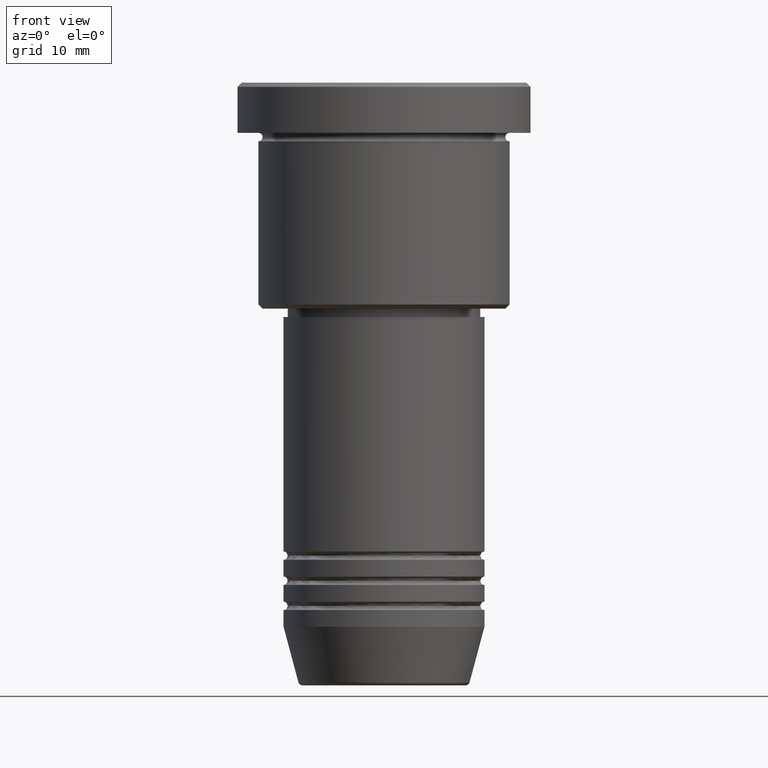
[diagram: clean part render]
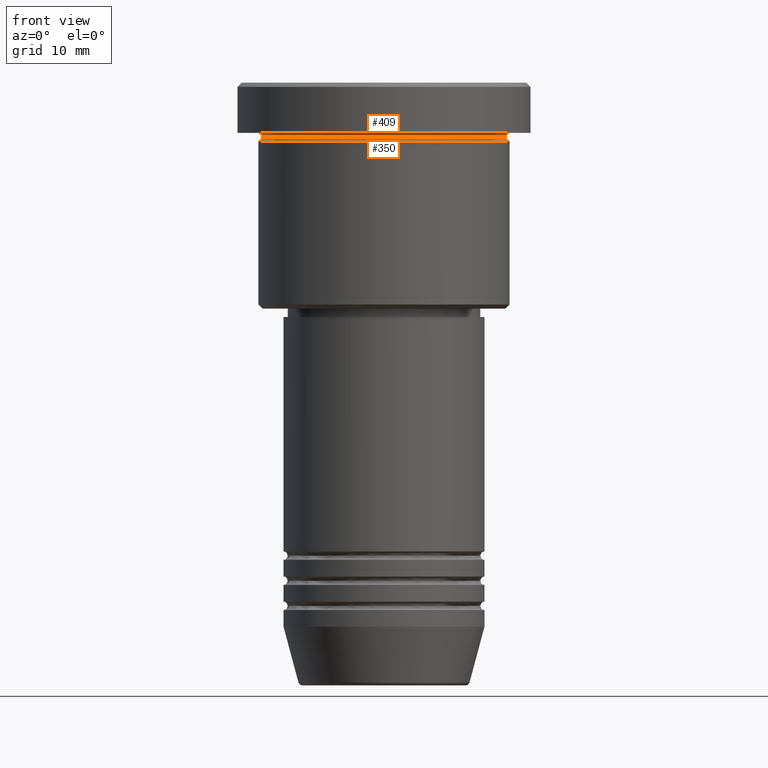
[diagram: same view with one multi-face feature highlighted, each face labeled with its STEP entity id]
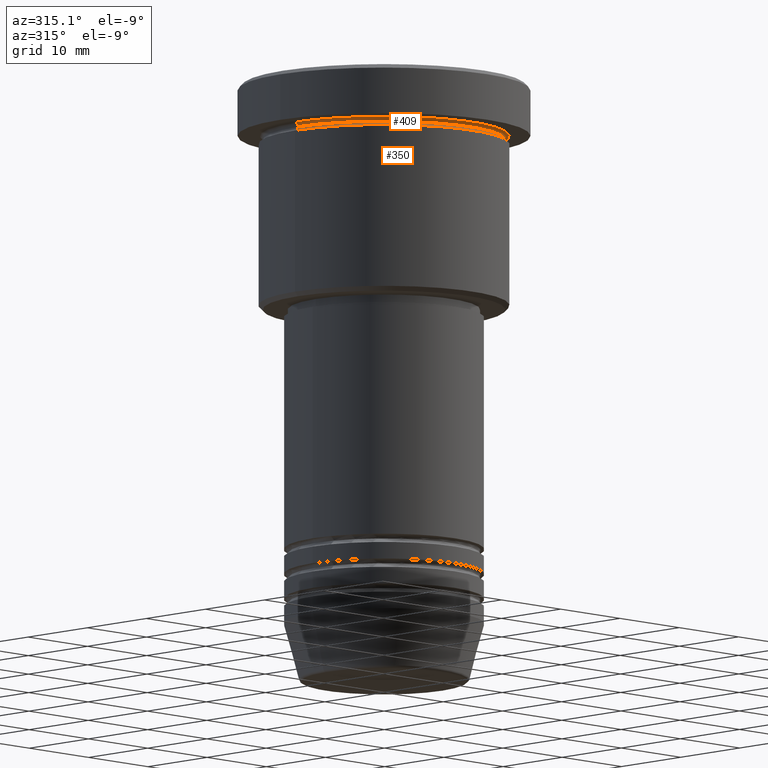
[diagram: same view with one multi-face feature highlighted, each face labeled with its STEP entity id]
A machine part, front view. The highlighted faces form ONE feature: a constant-radius fillet chain: 2 tangent blend faces with common blend radius 0.5 mm. The faces share edges in the B-rep.
A second angle (auxiliary view) of the same feature is appended — it is thin or edge-on in the first view.
Their STEP definitions:
[1] entity #409 (Torus):
#18 = VERTEX_POINT ( 'NONE', #595 ) ;
#41 = DIRECTION ( 'NONE',  ( 0.000000000000000000, 0.000000000000000000, -1.000000000000000000 ) ) ;
#70 = CIRCLE ( 'NONE', #567, 15.00000000000000000 ) ;
#85 = ORIENTED_EDGE ( 'NONE', *, *, #271, .F. ) ;
#93 = VERTEX_POINT ( 'NONE', #680 ) ;
#143 = TOROIDAL_SURFACE ( 'NONE', #187, 15.00000000000000000, 0.5000000000000000000 ) ;
#152 = EDGE_CURVE ( 'NONE', #18, #1121, #489, .T. ) ;
#187 = AXIS2_PLACEMENT_3D ( 'NONE', #422, #41, #776 ) ;
#234 = CARTESIAN_POINT ( 'NONE',  ( 0.000000000000000000, 0.000000000000000000, -5.999999999999995559 ) ) ;
#253 = EDGE_LOOP ( 'NONE', ( #942, #792, #403, #85 ) ) ;
#271 = EDGE_CURVE ( 'NONE', #18, #853, #389, .T. ) ;
#351 = CARTESIAN_POINT ( 'NONE',  ( 14.49999999999999822, 0.000000000000000000, -6.499999999999995559 ) ) ;
#353 = AXIS2_PLACEMENT_3D ( 'NONE', #793, #1092, #1163 ) ;
#389 = CIRCLE ( 'NONE', #353, 0.5000000000000004441 ) ;
#400 = DIRECTION ( 'NONE',  ( -1.224646799147353207E-16, 1.000000000000000000, 0.000000000000000000 ) ) ;
#403 = ORIENTED_EDGE ( 'NONE', *, *, #960, .F. ) ;
#409 = ADVANCED_FACE ( 'NONE', ( #598 ), #143, .F. ) ;
#422 = CARTESIAN_POINT ( 'NONE',  ( 0.000000000000000000, 0.000000000000000000, -6.499999999999995559 ) ) ;
#489 = CIRCLE ( 'NONE', #524, 14.49999999999999822 ) ;
#524 = AXIS2_PLACEMENT_3D ( 'NONE', #533, #1008, #893 ) ;
#533 = CARTESIAN_POINT ( 'NONE',  ( 0.000000000000000000, 0.000000000000000000, -6.499999999999995559 ) ) ;
#567 = AXIS2_PLACEMENT_3D ( 'NONE', #234, #1047, #592 ) ;
#592 = DIRECTION ( 'NONE',  ( -1.000000000000000000, 0.000000000000000000, 0.000000000000000000 ) ) ;
#595 = CARTESIAN_POINT ( 'NONE',  ( -14.49999999999999822, 1.806354028742345802E-15, -6.499999999999995559 ) ) ;
#598 = FACE_OUTER_BOUND ( 'NONE', #253, .T. ) ;
#620 = CIRCLE ( 'NONE', #750, 0.5000000000000004441 ) ;
#680 = CARTESIAN_POINT ( 'NONE',  ( 15.00000000000000000, 1.836970198721029589E-15, -5.999999999999994671 ) ) ;
#750 = AXIS2_PLACEMENT_3D ( 'NONE', #965, #400, #1148 ) ;
#776 = DIRECTION ( 'NONE',  ( -1.000000000000000000, 0.000000000000000000, 0.000000000000000000 ) ) ;
#792 = ORIENTED_EDGE ( 'NONE', *, *, #910, .T. ) ;
#793 = CARTESIAN_POINT ( 'NONE',  ( -15.00000000000000000, 0.000000000000000000, -6.499999999999995559 ) ) ;
#853 = VERTEX_POINT ( 'NONE', #940 ) ;
#893 = DIRECTION ( 'NONE',  ( 1.000000000000000000, 0.000000000000000000, 0.000000000000000000 ) ) ;
#910 = EDGE_CURVE ( 'NONE', #1121, #93, #620, .T. ) ;
#940 = CARTESIAN_POINT ( 'NONE',  ( -15.00000000000000000, 0.000000000000000000, -5.999999999999994671 ) ) ;
#942 = ORIENTED_EDGE ( 'NONE', *, *, #152, .T. ) ;
#960 = EDGE_CURVE ( 'NONE', #853, #93, #70, .T. ) ;
#965 = CARTESIAN_POINT ( 'NONE',  ( 15.00000000000000000, 1.836970198721029589E-15, -6.499999999999995559 ) ) ;
#1008 = DIRECTION ( 'NONE',  ( -0.000000000000000000, -0.000000000000000000, 1.000000000000000000 ) ) ;
#1047 = DIRECTION ( 'NONE',  ( -0.000000000000000000, -0.000000000000000000, 1.000000000000000000 ) ) ;
#1092 = DIRECTION ( 'NONE',  ( -0.000000000000000000, -1.000000000000000000, -0.000000000000000000 ) ) ;
#1121 = VERTEX_POINT ( 'NONE', #351 ) ;
#1148 = DIRECTION ( 'NONE',  ( -1.000000000000000000, -1.224646799147349509E-16, 0.000000000000000000 ) ) ;
#1163 = DIRECTION ( 'NONE',  ( 0.000000000000000000, 0.000000000000000000, -1.000000000000000000 ) ) ;
[2] entity #350 (Torus):
#18 = VERTEX_POINT ( 'NONE', #595 ) ;
#51 = AXIS2_PLACEMENT_3D ( 'NONE', #210, #484, #295 ) ;
#139 = ORIENTED_EDGE ( 'NONE', *, *, #326, .T. ) ;
#152 = EDGE_CURVE ( 'NONE', #18, #1121, #489, .T. ) ;
#193 = EDGE_LOOP ( 'NONE', ( #664, #909, #139, #809 ) ) ;
#208 = TOROIDAL_SURFACE ( 'NONE', #982, 15.00000000000000000, 0.5000000000000000000 ) ;
#210 = CARTESIAN_POINT ( 'NONE',  ( 15.00000000000000000, 0.000000000000000000, -6.499999999999995559 ) ) ;
#220 = FACE_OUTER_BOUND ( 'NONE', #193, .T. ) ;
#295 = DIRECTION ( 'NONE',  ( 0.000000000000000000, 0.000000000000000000, -1.000000000000000000 ) ) ;
#309 = DIRECTION ( 'NONE',  ( -0.000000000000000000, -0.000000000000000000, 1.000000000000000000 ) ) ;
#326 = EDGE_CURVE ( 'NONE', #1042, #559, #545, .T. ) ;
#350 = ADVANCED_FACE ( 'NONE', ( #220 ), #208, .F. ) ;
#351 = CARTESIAN_POINT ( 'NONE',  ( 14.49999999999999822, 0.000000000000000000, -6.499999999999995559 ) ) ;
#391 = CIRCLE ( 'NONE', #51, 0.5000000000000004441 ) ;
#439 = CARTESIAN_POINT ( 'NONE',  ( 15.00000000000000000, 0.000000000000000000, -6.999999999999995559 ) ) ;
#484 = DIRECTION ( 'NONE',  ( 0.000000000000000000, -1.000000000000000000, 0.000000000000000000 ) ) ;
#485 = DIRECTION ( 'NONE',  ( 1.000000000000000000, 0.000000000000000000, 0.000000000000000000 ) ) ;
#489 = CIRCLE ( 'NONE', #524, 14.49999999999999822 ) ;
#524 = AXIS2_PLACEMENT_3D ( 'NONE', #533, #1008, #893 ) ;
#528 = AXIS2_PLACEMENT_3D ( 'NONE', #1178, #709, #1085 ) ;
#533 = CARTESIAN_POINT ( 'NONE',  ( 0.000000000000000000, 0.000000000000000000, -6.499999999999995559 ) ) ;
#545 = CIRCLE ( 'NONE', #920, 15.00000000000000000 ) ;
#557 = CARTESIAN_POINT ( 'NONE',  ( 0.000000000000000000, 0.000000000000000000, -6.999999999999995559 ) ) ;
#559 = VERTEX_POINT ( 'NONE', #439 ) ;
#574 = DIRECTION ( 'NONE',  ( 1.000000000000000000, 0.000000000000000000, 0.000000000000000000 ) ) ;
#595 = CARTESIAN_POINT ( 'NONE',  ( -14.49999999999999822, 1.806354028742345802E-15, -6.499999999999995559 ) ) ;
#646 = EDGE_CURVE ( 'NONE', #18, #1042, #865, .T. ) ;
#664 = ORIENTED_EDGE ( 'NONE', *, *, #152, .F. ) ;
#709 = DIRECTION ( 'NONE',  ( 1.224646799147353207E-16, 1.000000000000000000, 0.000000000000000000 ) ) ;
#753 = DIRECTION ( 'NONE',  ( -0.000000000000000000, -0.000000000000000000, 1.000000000000000000 ) ) ;
#766 = EDGE_CURVE ( 'NONE', #1121, #559, #391, .T. ) ;
#809 = ORIENTED_EDGE ( 'NONE', *, *, #766, .F. ) ;
#842 = CARTESIAN_POINT ( 'NONE',  ( 0.000000000000000000, 0.000000000000000000, -6.499999999999995559 ) ) ;
#865 = CIRCLE ( 'NONE', #528, 0.5000000000000004441 ) ;
#882 = CARTESIAN_POINT ( 'NONE',  ( -15.00000000000000000, 1.836970198721029589E-15, -6.999999999999995559 ) ) ;
#893 = DIRECTION ( 'NONE',  ( 1.000000000000000000, 0.000000000000000000, 0.000000000000000000 ) ) ;
#909 = ORIENTED_EDGE ( 'NONE', *, *, #646, .T. ) ;
#920 = AXIS2_PLACEMENT_3D ( 'NONE', #557, #309, #485 ) ;
#982 = AXIS2_PLACEMENT_3D ( 'NONE', #842, #753, #574 ) ;
#1008 = DIRECTION ( 'NONE',  ( -0.000000000000000000, -0.000000000000000000, 1.000000000000000000 ) ) ;
#1042 = VERTEX_POINT ( 'NONE', #882 ) ;
#1085 = DIRECTION ( 'NONE',  ( -1.000000000000000000, 1.224646799147349509E-16, 0.000000000000000000 ) ) ;
#1121 = VERTEX_POINT ( 'NONE', #351 ) ;
#1178 = CARTESIAN_POINT ( 'NONE',  ( -15.00000000000000000, 1.836970198721029589E-15, -6.499999999999995559 ) ) ;